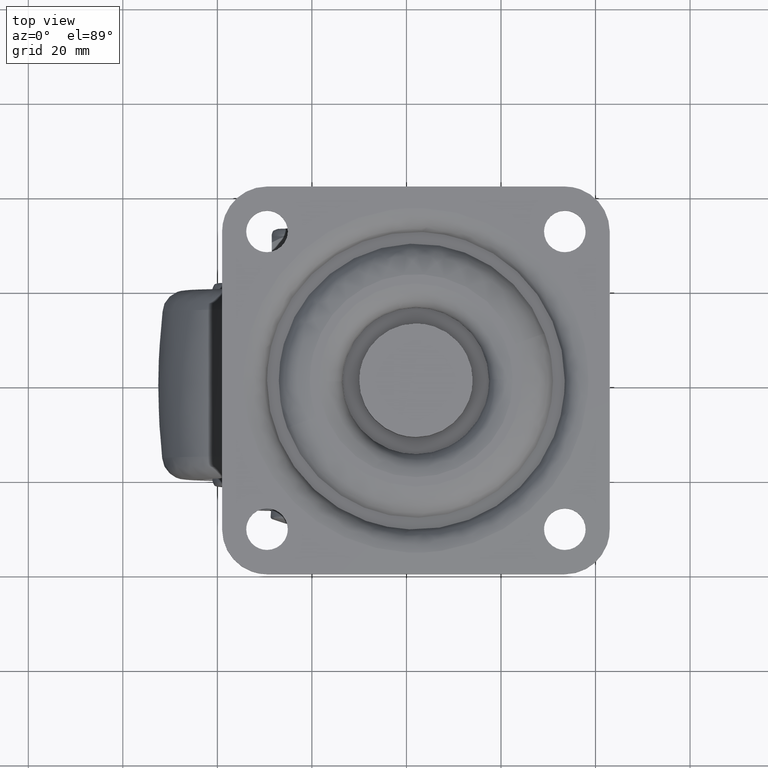
[diagram: clean part render]
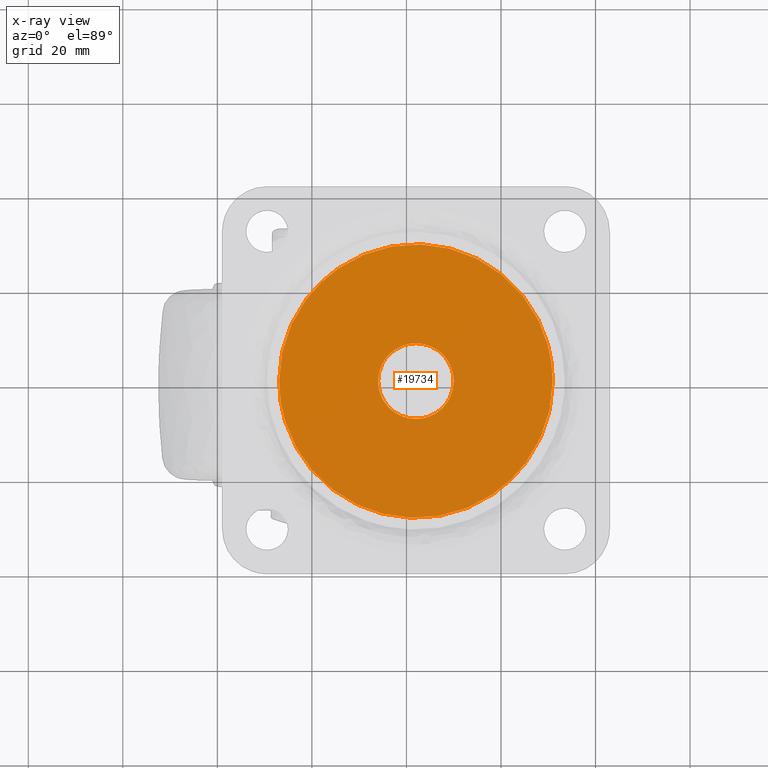
[diagram: x-ray — body ghosted, one internal face saturated and labeled with its STEP entity id]
A machine part, top view, then the same camera in x-ray: the body is ghosted and one INTERNAL B-rep face — a face not visible from any outside direction — is saturated and labeled: STEP entity #19734.
In plain terms, the highlighted face is a freeform B-spline surface patch.
Its self-contained STEP definition (entity closure, byte-faithful):
#19250=CARTESIAN_POINT('',(16.293996672856121,5.607273955835133,46.900000524557989));
#19251=VERTEX_POINT('',#19250);
#19257=CARTESIAN_POINT('',(14.0,0.0,46.900000524558003));
#19258=VERTEX_POINT('',#19257);
#19259=CARTESIAN_POINT('',(14.0,0.0,46.900000524558003));
#19260=CARTESIAN_POINT('',(13.999852486322890,0.614882989068825,46.900000524557967));
#19261=CARTESIAN_POINT('',(14.105015521724949,1.520934123947753,46.900000524558202));
#19262=CARTESIAN_POINT('',(14.478872009440501,2.796051735565794,46.900000524557832));
#19263=CARTESIAN_POINT('',(15.072677399187240,4.130725157439122,46.900000524558379));
#19264=CARTESIAN_POINT('',(15.772060726127140,5.076575389167054,46.900000524557527));
#19265=CARTESIAN_POINT('',(16.293996672856121,5.607273955835133,46.900000524557989));
#19266=B_SPLINE_CURVE_WITH_KNOTS('',3,(#19259,#19260,#19261,#19262,#19263,#19264,#19265),.UNSPECIFIED.,.F.,.U.,(4,1,1,1,4),(0.000000021972646,1.844610272876075,2.718379519412415,3.980457700477724,6.213410218376524),.UNSPECIFIED.);
#19267=EDGE_CURVE('',#19258,#19251,#19266,.T.);
#19269=CARTESIAN_POINT('',(21.999998796107761,-7.999999999999909,46.900000524558003));
#19270=VERTEX_POINT('',#19269);
#19271=CARTESIAN_POINT('',(21.999998796107761,-7.999999999999909,46.900000524558003));
#19272=CARTESIAN_POINT('',(21.509123880433989,-8.000044511060642,46.900000524557910));
#19273=CARTESIAN_POINT('',(20.592850281097292,-7.915393296834675,46.900000524558152));
#19274=CARTESIAN_POINT('',(19.166619867514711,-7.530179861008542,46.900000524557939));
#19275=CARTESIAN_POINT('',(18.009998324773001,-6.974409995282742,46.900000524558052));
#19276=CARTESIAN_POINT('',(16.906628578533571,-6.207380781861176,46.900000524558010));
#19277=CARTESIAN_POINT('',(16.092688627870441,-5.441906655316981,46.900000524558017));
#19278=CARTESIAN_POINT('',(15.265651646387690,-4.382173888813507,46.900000524557981));
#19279=CARTESIAN_POINT('',(14.567924987194830,-3.114662620838399,46.900000524558017));
#19280=CARTESIAN_POINT('',(14.099627995181750,-1.570792435551236,46.900000524557981));
#19281=CARTESIAN_POINT('',(13.999967883892459,-0.490865782948730,46.900000524557967));
#19282=CARTESIAN_POINT('',(14.0,0.0,46.900000524558003));
#19283=B_SPLINE_CURVE_WITH_KNOTS('',3,(#19271,#19272,#19273,#19274,#19275,#19276,#19277,#19278,#19279,#19280,#19281,#19282),.UNSPECIFIED.,.F.,.U.,(4,1,1,1,1,1,1,1,1,4),(0.000000081833607,1.472625286802026,2.748905519996360,4.417909228261038,5.301496477568732,6.774082991665271,7.755834305695303,9.326660521149204,11.093838911914149,12.566448784465299),.UNSPECIFIED.);
#19284=EDGE_CURVE('',#19270,#19258,#19283,.T.);
#19286=CARTESIAN_POINT('',(27.706003327143900,-5.607273955835146,46.900000524558003));
#19287=VERTEX_POINT('',#19286);
#19288=CARTESIAN_POINT('',(27.706003327143900,-5.607273955835146,46.900000524558003));
#19289=CARTESIAN_POINT('',(27.311788176548159,-6.008533610253390,46.900000524558031));
#19290=CARTESIAN_POINT('',(26.515324062598669,-6.663952715081210,46.900000524557989));
#19291=CARTESIAN_POINT('',(25.317864710520599,-7.312363301737456,46.900000524558010));
#19292=CARTESIAN_POINT('',(23.852807579455860,-7.842959273813193,46.900000524558003));
#19293=CARTESIAN_POINT('',(22.761085560348601,-8.000333691886699,46.900000524557861));
#19294=CARTESIAN_POINT('',(21.999998796107761,-7.999999999999909,46.900000524558003));
#19295=B_SPLINE_CURVE_WITH_KNOTS('',3,(#19288,#19289,#19290,#19291,#19292,#19293,#19294),.UNSPECIFIED.,.F.,.U.,(4,1,1,1,4),(0.000000024538962,1.687527006727987,3.077266970057662,4.069907603376267,6.353040241297811),.UNSPECIFIED.);
#19296=EDGE_CURVE('',#19287,#19270,#19295,.T.);
#19330=CARTESIAN_POINT('',(30.0,0.0,46.900000524558003));
#19331=VERTEX_POINT('',#19330);
#19332=CARTESIAN_POINT('',(30.0,0.0,46.900000524558003));
#19333=CARTESIAN_POINT('',(30.000047217582530,-0.485421786840847,46.900000524558067));
#19334=CARTESIAN_POINT('',(29.908425698604731,-1.488615390512329,46.900000524557910));
#19335=CARTESIAN_POINT('',(29.523271084597351,-2.832611198506112,46.900000524558010));
#19336=CARTESIAN_POINT('',(28.833092285573521,-4.264939236155140,46.900000524558088));
#19337=CARTESIAN_POINT('',(28.182492970021610,-5.122677433905404,46.900000524557989));
#19338=CARTESIAN_POINT('',(27.706003327143900,-5.607273955835146,46.900000524558003));
#19339=B_SPLINE_CURVE_WITH_KNOTS('',3,(#19332,#19333,#19334,#19335,#19336,#19337,#19338),.UNSPECIFIED.,.F.,.U.,(4,1,1,1,4),(0.000000021973610,1.456267531522032,3.009632745050415,4.174633560451336,6.213410218376523),.UNSPECIFIED.);
#19340=EDGE_CURVE('',#19331,#19287,#19339,.T.);
#19342=CARTESIAN_POINT('',(22.000001203892321,7.999999999999909,46.900000524557989));
#19343=VERTEX_POINT('',#19342);
#19344=CARTESIAN_POINT('',(22.000001203892321,7.999999999999909,46.900000524557989));
#19345=CARTESIAN_POINT('',(22.621786118597392,8.000147450250328,46.900000524558152));
#19346=CARTESIAN_POINT('',(23.636177785474811,7.881081480564226,46.900000524557747));
#19347=CARTESIAN_POINT('',(25.200322391919929,7.385667578553069,46.900000524558052));
#19348=CARTESIAN_POINT('',(26.532512932949299,6.663031396446785,46.900000524558138));
#19349=CARTESIAN_POINT('',(27.833367182348720,5.554754394000834,46.900000524557790));
#19350=CARTESIAN_POINT('',(28.744881689742179,4.386730135056017,46.900000524558052));
#19351=CARTESIAN_POINT('',(29.470271930960340,2.988599363258216,46.900000524558052));
#19352=CARTESIAN_POINT('',(29.900367324227808,1.570801140691164,46.900000524557939));
#19353=CARTESIAN_POINT('',(30.000035225140149,0.490865115759976,46.900000524558017));
#19354=CARTESIAN_POINT('',(30.0,0.0,46.900000524558003));
#19355=B_SPLINE_CURVE_WITH_KNOTS('',3,(#19344,#19345,#19346,#19347,#19348,#19349,#19350,#19351,#19352,#19353,#19354),.UNSPECIFIED.,.F.,.U.,(4,1,1,1,1,1,1,1,4),(0.000000081837495,1.865317612765283,3.043437243505764,4.908793939002067,6.381376222969637,8.148538060096012,9.326660521149268,11.093838911914130,12.566448784465260),.UNSPECIFIED.);
#19356=EDGE_CURVE('',#19343,#19331,#19355,.T.);
#19358=CARTESIAN_POINT('',(16.293996672856121,5.607273955835133,46.900000524557989));
#19359=CARTESIAN_POINT('',(16.780885843552038,6.103065894595299,46.900000524558259));
#19360=CARTESIAN_POINT('',(17.648446730926640,6.781235239838108,46.900000524557683));
#19361=CARTESIAN_POINT('',(19.046460995412112,7.472297600352633,46.900000524558173));
#19362=CARTESIAN_POINT('',(20.411773824161571,7.891365780477970,46.900000524557747));
#19363=CARTESIAN_POINT('',(21.437490915552178,8.000084721097663,46.900000524558287));
#19364=CARTESIAN_POINT('',(22.000001203892321,7.999999999999909,46.900000524557989));
#19365=B_SPLINE_CURVE_WITH_KNOTS('',3,(#19358,#19359,#19360,#19361,#19362,#19363,#19364),.UNSPECIFIED.,.F.,.U.,(4,1,1,1,4),(0.000000024537560,2.084592870362392,3.275773295788239,4.665513259098567,6.353040241297873),.UNSPECIFIED.);
#19366=EDGE_CURVE('',#19251,#19343,#19365,.T.);
#19576=CARTESIAN_POINT('',(5.581147861907801,23.836065718288079,46.900001048723809));
#19577=VERTEX_POINT('',#19576);
#19587=CARTESIAN_POINT('',(50.943682116196896,0.0,46.900001049116298));
#19588=VERTEX_POINT('',#19587);
#19589=CARTESIAN_POINT('',(5.581147861907801,23.836065718288079,46.900001048723809));
#19590=CARTESIAN_POINT('',(7.301537037639362,25.021526750171919,46.900001048731298));
#19591=CARTESIAN_POINT('',(10.202691491742950,26.586710869884261,46.900001048745480));
#19592=CARTESIAN_POINT('',(14.053249224206800,27.884244952230851,46.900001048766867));
#19593=CARTESIAN_POINT('',(17.171855041709779,28.592031599477188,46.900001048785782));
#19594=CARTESIAN_POINT('',(19.861863408525050,28.914027864417410,46.900001048802046));
#19595=CARTESIAN_POINT('',(22.935720387241361,28.973506321028410,46.900001048823647));
#19596=CARTESIAN_POINT('',(26.332009320155340,28.714341612120322,46.900001048846477));
#19597=CARTESIAN_POINT('',(30.707464775759089,27.753007976192979,46.900001048880057));
#19598=CARTESIAN_POINT('',(34.819484252209662,26.071025261527531,46.900001048915662));
#19599=CARTESIAN_POINT('',(37.886977837097987,24.245016424982119,46.900001048942322));
#19600=CARTESIAN_POINT('',(40.470026837981152,22.360602243180711,46.900001048962892));
#19601=CARTESIAN_POINT('',(42.808552192147950,20.231477084430391,46.900001048990553));
#19602=CARTESIAN_POINT('',(45.147801249976318,17.481291662773039,46.900001049014563));
#19603=CARTESIAN_POINT('',(47.111979580267771,14.549086912410440,46.900001049038273));
#19604=CARTESIAN_POINT('',(48.706888173836099,11.352661090730241,46.900001049061252));
#19605=CARTESIAN_POINT('',(49.957134374771051,7.790658787477764,46.900001049080103));
#19606=CARTESIAN_POINT('',(50.753933409681487,4.055562234485563,46.900001049108553));
#19607=CARTESIAN_POINT('',(50.943742364102100,1.351851870638317,46.900001049096701));
#19608=CARTESIAN_POINT('',(50.943682116196896,0.0,46.900001049116298));
#19609=B_SPLINE_CURVE_WITH_KNOTS('',3,(#19589,#19590,#19591,#19592,#19593,#19594,#19595,#19596,#19597,#19598,#19599,#19600,#19601,#19602,#19603,#19604,#19605,#19606,#19607,#19608),.UNSPECIFIED.,.F.,.U.,(4,1,1,1,1,1,1,1,1,1,1,1,1,1,1,1,1,4),(0.000000086606761,6.267723810858158,9.831713353440591,12.166758548397629,15.853671322890699,17.942918897189351,21.384044504442461,26.054121096072912,31.338707495096831,34.656819184242487,36.746062615046839,40.924565219373768,44.119898414166833,47.561012333243042,51.493721732574258,54.811924620021983,58.867542853449933,62.923094568298140),.UNSPECIFIED.);
#19610=EDGE_CURVE('',#19577,#19588,#19609,.T.);
#19612=CARTESIAN_POINT('',(38.418852138092191,-23.836065718288090,46.900001048723809));
#19613=VERTEX_POINT('',#19612);
#19614=CARTESIAN_POINT('',(50.943682116196896,0.0,46.900001049116298));
#19615=CARTESIAN_POINT('',(50.944113204652467,-2.115099441051497,46.900001049089177));
#19616=CARTESIAN_POINT('',(50.630482571507400,-4.959304431966118,46.900001049050047));
#19617=CARTESIAN_POINT('',(49.647064654598410,-8.700432946453358,46.900001048995321));
#19618=CARTESIAN_POINT('',(48.552088769395567,-11.721665794490219,46.900001048948923));
#19619=CARTESIAN_POINT('',(46.808456312565283,-15.101790634304569,46.900001048893223));
#19620=CARTESIAN_POINT('',(44.685050265363238,-18.076818153963352,46.900001048840942));
#19621=CARTESIAN_POINT('',(41.997504942353721,-21.060267442111190,46.900001048783757));
#19622=CARTESIAN_POINT('',(39.920569556819970,-22.801938261587871,46.900001048747093));
#19623=CARTESIAN_POINT('',(38.418852138092191,-23.836065718288090,46.900001048723809));
#19624=B_SPLINE_CURVE_WITH_KNOTS('',3,(#19614,#19615,#19616,#19617,#19618,#19619,#19620,#19621,#19622,#19623),.UNSPECIFIED.,.F.,.U.,(4,1,1,1,1,1,1,4),(8.712092E-009,6.345170851778367,8.533169252817295,11.596367027324670,15.972310265173880,19.910709683530659,22.536308492037708,28.006278487154429),.UNSPECIFIED.);
#19625=EDGE_CURVE('',#19588,#19613,#19624,.T.);
#19673=CARTESIAN_POINT('',(-6.943682116196939,0.0,46.900001049116320));
#19674=VERTEX_POINT('',#19673);
#19675=CARTESIAN_POINT('',(38.418852138092191,-23.836065718288090,46.900001048723809));
#19676=CARTESIAN_POINT('',(37.204391776976429,-24.672723359520059,46.900001048728981));
#19677=CARTESIAN_POINT('',(34.824770092196268,-26.056472414672360,46.900001048740322));
#19678=CARTESIAN_POINT('',(31.361624165831110,-27.457847140548719,46.900001048759123));
#19679=CARTESIAN_POINT('',(27.959694241236910,-28.391131362430020,46.900001048778201));
#19680=CARTESIAN_POINT('',(24.753289789541679,-28.878928771464128,46.900001048798700));
#19681=CARTESIAN_POINT('',(21.268726792863710,-28.998180845776659,46.900001048821558));
#19682=CARTESIAN_POINT('',(17.299826709246620,-28.678444757614539,46.900001048850001));
#19683=CARTESIAN_POINT('',(12.939618844633269,-27.632613163278410,46.900001048882828));
#19684=CARTESIAN_POINT('',(8.744759363183128,-25.843434153541470,46.900001048918163));
#19685=CARTESIAN_POINT('',(5.414260927306126,-23.812879653379049,46.900001048947217));
#19686=CARTESIAN_POINT('',(2.879014931081841,-21.792891738697062,46.900001048972889));
#19687=CARTESIAN_POINT('',(0.647371729091542,-19.617939672782988,46.900001048994191));
#19688=CARTESIAN_POINT('',(-1.164518376411637,-17.441427751099450,46.900001049015621));
#19689=CARTESIAN_POINT('',(-3.058521307956164,-14.613945306685000,46.900001049038408));
#19690=CARTESIAN_POINT('',(-4.788611066031293,-11.254612119778910,46.900001049061437));
#19691=CARTESIAN_POINT('',(-6.039816916318514,-7.512739720599175,46.900001049082867));
#19692=CARTESIAN_POINT('',(-6.779761440384778,-3.686856263641730,46.900001049103487));
#19693=CARTESIAN_POINT('',(-6.943750403183245,-1.351852999749045,46.900001049110138));
#19694=CARTESIAN_POINT('',(-6.943682116196939,0.0,46.900001049116320));
#19695=B_SPLINE_CURVE_WITH_KNOTS('',3,(#19675,#19676,#19677,#19678,#19679,#19680,#19681,#19682,#19683,#19684,#19685,#19686,#19687,#19688,#19689,#19690,#19691,#19692,#19693,#19694),.UNSPECIFIED.,.F.,.U.,(4,1,1,1,1,1,1,1,1,1,1,1,1,1,1,1,1,4),(0.000000086351562,4.424260671247183,8.234046454730795,11.183590382366511,14.993391921392940,17.942918897020650,21.629837816659251,26.914414099278961,31.338707494982039,35.271340300732561,38.589519483339160,41.047487283164948,44.611483549363832,47.069424340014180,51.247928134822757,55.918012763656762,58.867542853435637,62.923094568298630),.UNSPECIFIED.);
#19696=EDGE_CURVE('',#19613,#19674,#19695,.T.);
#19698=CARTESIAN_POINT('',(-6.943682116196939,0.0,46.900001049116320));
#19699=CARTESIAN_POINT('',(-6.943989578561386,1.969213700398755,46.900001049090847));
#19700=CARTESIAN_POINT('',(-6.622321809513056,5.105195948186492,46.900001049048392));
#19701=CARTESIAN_POINT('',(-5.533137004990114,9.125051000411917,46.900001048988877));
#19702=CARTESIAN_POINT('',(-4.293314051436305,12.247515313727600,46.900001048940403));
#19703=CARTESIAN_POINT('',(-2.638555182703270,15.339775455882201,46.900001048889123));
#19704=CARTESIAN_POINT('',(-0.345358326813129,18.552873122851111,46.900001048832031));
#19705=CARTESIAN_POINT('',(2.436249118433900,21.458977376901281,46.900001048776602));
#19706=CARTESIAN_POINT('',(4.560065919543603,23.132759135034458,46.900001048738353));
#19707=CARTESIAN_POINT('',(5.581147861907801,23.836065718288079,46.900001048723809));
#19708=B_SPLINE_CURVE_WITH_KNOTS('',3,(#19698,#19699,#19700,#19701,#19702,#19703,#19704,#19705,#19706,#19707),.UNSPECIFIED.,.F.,.U.,(4,1,1,1,1,1,1,4),(8.703658E-009,5.907570444303243,9.408367086671753,12.471567110991581,15.972310265170711,19.910709683528580,24.286695176620359,28.006278487154489),.UNSPECIFIED.);
#19709=EDGE_CURVE('',#19674,#19577,#19708,.T.);
#19715=CARTESIAN_POINT('',(-9.835155847408068,-31.826400679026651,46.900000524558003));
#19716=CARTESIAN_POINT('',(53.835157400068127,-31.826400679026651,46.900000524558003));
#19717=CARTESIAN_POINT('',(-9.835155847408068,31.826412051529410,46.900000524558003));
#19718=CARTESIAN_POINT('',(53.835157400068127,31.826412051529410,46.900000524558003));
#19719=B_SPLINE_SURFACE_WITH_KNOTS('',1,1,((#19715,#19717),(#19716,#19718)),.UNSPECIFIED.,.F.,.F.,.U.,(2,2),(2,2),(0.0,63.670313247476187),(0.0,63.652812730556057),.UNSPECIFIED.);
#19720=ORIENTED_EDGE('',*,*,#19696,.F.);
#19721=ORIENTED_EDGE('',*,*,#19625,.F.);
#19722=ORIENTED_EDGE('',*,*,#19610,.F.);
#19723=ORIENTED_EDGE('',*,*,#19709,.F.);
#19724=EDGE_LOOP('',(#19720,#19721,#19722,#19723));
#19725=FACE_OUTER_BOUND('',#19724,.T.);
#19726=ORIENTED_EDGE('',*,*,#19284,.T.);
#19727=ORIENTED_EDGE('',*,*,#19267,.T.);
#19728=ORIENTED_EDGE('',*,*,#19366,.T.);
#19729=ORIENTED_EDGE('',*,*,#19356,.T.);
#19730=ORIENTED_EDGE('',*,*,#19340,.T.);
#19731=ORIENTED_EDGE('',*,*,#19296,.T.);
#19732=EDGE_LOOP('',(#19726,#19727,#19728,#19729,#19730,#19731));
#19733=FACE_BOUND('',#19732,.T.);
#19734=ADVANCED_FACE('',(#19725,#19733),#19719,.T.);